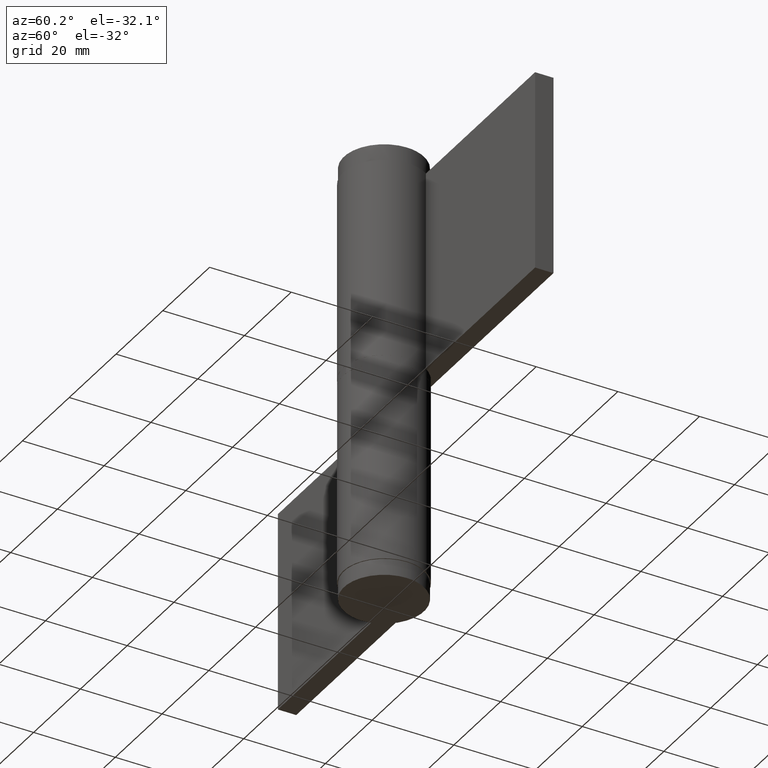
[diagram: clean part render]
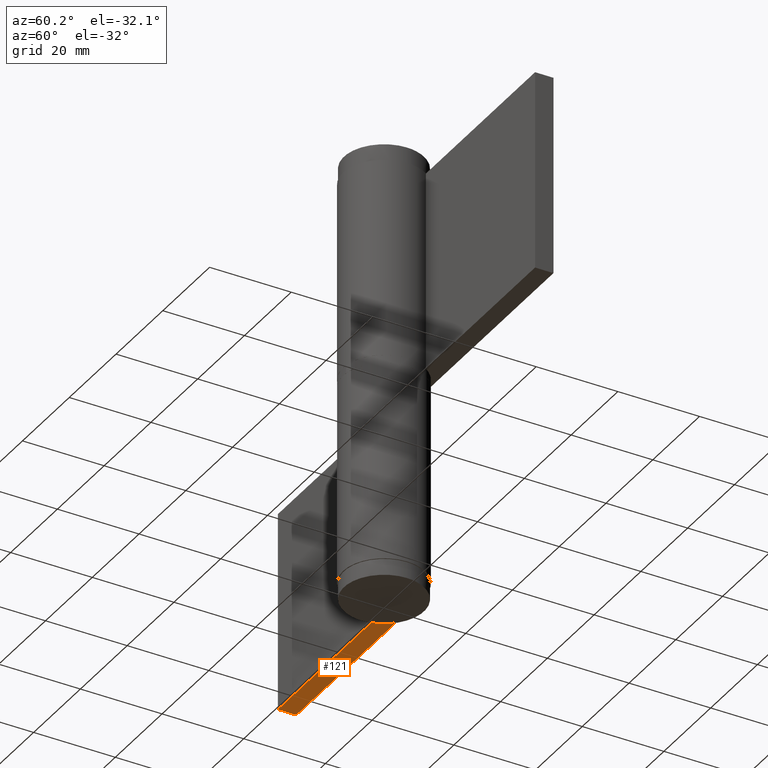
[diagram: same view with one face highlighted and labeled with its STEP entity id]
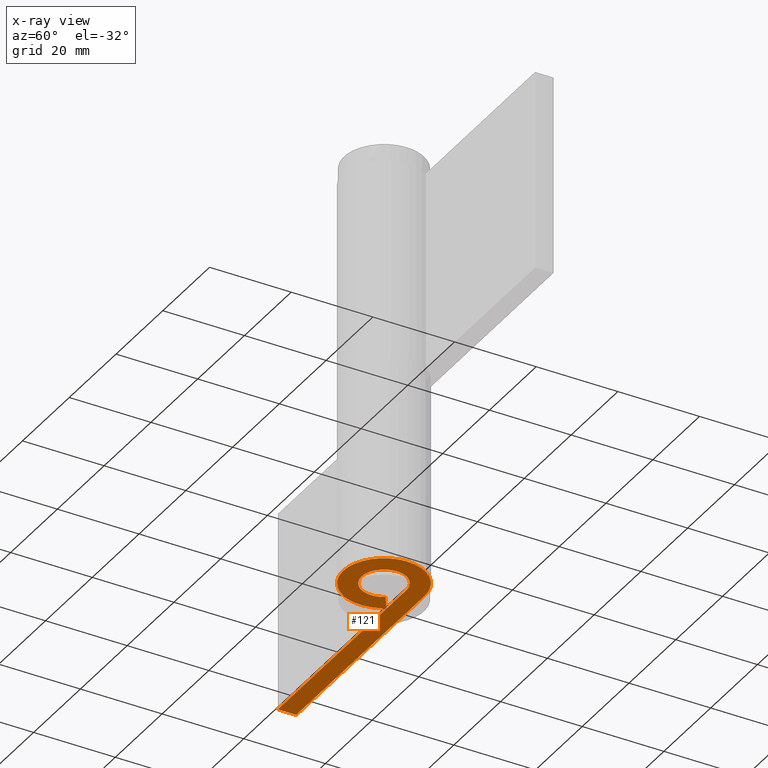
[diagram: x-ray of the same camera — body ghosted, the highlighted face saturated]
A machine part, auxiliary view. The second image highlights one B-rep face of the part: STEP entity #121.
The next image is the same camera in x-ray: the body ghosted, the highlighted face saturated — about 0% of this face is hidden behind the body in this view.
In plain terms, the highlighted face is a freeform B-spline surface patch.
Its self-contained STEP definition (entity closure, byte-faithful):
#44=CARTESIAN_POINT('',(-58.246687244102581,-10.993734196401560,0.0));
#45=CARTESIAN_POINT('',(13.245435135307890,-10.993734196401560,0.0));
#46=CARTESIAN_POINT('',(-58.246687244102581,10.998749985667811,0.0));
#47=CARTESIAN_POINT('',(13.245435135307890,10.998749985667811,0.0));
#48=B_SPLINE_SURFACE_WITH_KNOTS('',1,1,((#44,#46),(#45,#47)),.UNSPECIFIED.,.F.,.F.,.U.,(2,2),(2,2),(0.0,71.492122379410475),(0.0,21.992484182069379),.UNSPECIFIED.);
#49=CARTESIAN_POINT('',(-55.0,5.500000000000000,0.0));
#50=VERTEX_POINT('',#49);
#51=CARTESIAN_POINT('',(-55.0,10.0,0.0));
#52=VERTEX_POINT('',#51);
#53=CARTESIAN_POINT('',(-55.0,5.500000000000000,0.0));
#54=CARTESIAN_POINT('',(-55.0,10.0,0.0));
#55=QUASI_UNIFORM_CURVE('',1,(#53,#54),.UNSPECIFIED.,.F.,.U.);
#56=EDGE_CURVE('',#50,#52,#55,.T.);
#57=ORIENTED_EDGE('',*,*,#56,.T.);
#58=CARTESIAN_POINT('',(0.0,10.0,0.0));
#59=VERTEX_POINT('',#58);
#60=CARTESIAN_POINT('',(-55.0,10.0,0.0));
#61=CARTESIAN_POINT('',(0.0,10.0,0.0));
#62=QUASI_UNIFORM_CURVE('',1,(#60,#61),.UNSPECIFIED.,.F.,.U.);
#63=EDGE_CURVE('',#52,#59,#62,.T.);
#64=ORIENTED_EDGE('',*,*,#63,.T.);
#65=CARTESIAN_POINT('',(-8.384360440725340,5.450000000000000,0.0));
#66=VERTEX_POINT('',#65);
#67=CARTESIAN_POINT('',(0.0,10.0,0.0));
#68=CARTESIAN_POINT('',(7.778645974197688,10.0,0.0));
#69=CARTESIAN_POINT('',(9.692573939780772,2.460489874371089,0.0));
#70=CARTESIAN_POINT('',(11.606501905363858,-5.079020251257823,0.0));
#71=CARTESIAN_POINT('',(4.769696007084734,-8.789197915623470,0.0));
#72=CARTESIAN_POINT('',(-2.067109891194394,-12.499375579989119,0.0));
#73=CARTESIAN_POINT('',(-7.345416193928739,-6.785636369418084,0.0));
#74=CARTESIAN_POINT('',(-12.623722496663074,-1.071897158847060,0.0));
#75=CARTESIAN_POINT('',(-8.384360440725345,5.449999999999990,0.0));
#83=(BOUNDED_CURVE()B_SPLINE_CURVE(2,(#67,#68,#69,#70,#71,#72,#73,#74,#75),.UNSPECIFIED.,.F.,.U.)B_SPLINE_CURVE_WITH_KNOTS((3,2,2,2,3),(0.0,0.250000000000000,0.500000000000000,0.750000000000000,1.0),.UNSPECIFIED.)CURVE()GEOMETRIC_REPRESENTATION_ITEM()RATIONAL_B_SPLINE_CURVE((1.0,0.789319006307687,1.0,0.789319006307687,1.0,0.789319006307687,1.0,0.789319006307687,1.0))REPRESENTATION_ITEM(''));
#84=EDGE_CURVE('',#59,#66,#83,.T.);
#85=ORIENTED_EDGE('',*,*,#84,.T.);
#86=CARTESIAN_POINT('',(-4.611398242398940,2.997500000000000,0.0));
#87=VERTEX_POINT('',#86);
#88=CARTESIAN_POINT('',(-8.384360440725340,5.450000000000000,0.0));
#89=CARTESIAN_POINT('',(-4.611398242398940,2.997500000000000,0.0));
#90=QUASI_UNIFORM_CURVE('',1,(#88,#89),.UNSPECIFIED.,.F.,.U.);
#91=EDGE_CURVE('',#66,#87,#90,.T.);
#92=ORIENTED_EDGE('',*,*,#91,.T.);
#93=CARTESIAN_POINT('',(3.367667E-016,5.500000000000000,0.0));
#94=VERTEX_POINT('',#93);
#95=CARTESIAN_POINT('',(0.0,5.500000000000000,0.0));
#96=CARTESIAN_POINT('',(4.278255285808728,5.500000000000001,0.0));
#97=CARTESIAN_POINT('',(5.330915666879424,1.353269430904099,0.0));
#98=CARTESIAN_POINT('',(6.383576047950122,-2.793461138191804,0.0));
#99=CARTESIAN_POINT('',(2.623332803896604,-4.834058853592909,0.0));
#100=CARTESIAN_POINT('',(-1.136910440156916,-6.874656568994016,0.0));
#101=CARTESIAN_POINT('',(-4.039978906660806,-3.732100003179946,0.0));
#102=CARTESIAN_POINT('',(-6.943047373164690,-0.589543437365883,0.0));
#103=CARTESIAN_POINT('',(-4.611398242398940,2.997499999999995,0.0));
#111=(BOUNDED_CURVE()B_SPLINE_CURVE(2,(#95,#96,#97,#98,#99,#100,#101,#102,#103),.UNSPECIFIED.,.F.,.U.)B_SPLINE_CURVE_WITH_KNOTS((3,2,2,2,3),(0.0,0.250000000000000,0.500000000000000,0.750000000000000,1.0),.UNSPECIFIED.)CURVE()GEOMETRIC_REPRESENTATION_ITEM()RATIONAL_B_SPLINE_CURVE((1.0,0.789319006307687,1.0,0.789319006307687,1.0,0.789319006307687,1.0,0.789319006307687,1.0))REPRESENTATION_ITEM(''));
#112=EDGE_CURVE('',#94,#87,#111,.T.);
#113=ORIENTED_EDGE('',*,*,#112,.F.);
#114=CARTESIAN_POINT('',(3.367667E-016,5.500000000000000,0.0));
#115=CARTESIAN_POINT('',(-55.0,5.500000000000000,0.0));
#116=QUASI_UNIFORM_CURVE('',1,(#114,#115),.UNSPECIFIED.,.F.,.U.);
#117=EDGE_CURVE('',#94,#50,#116,.T.);
#118=ORIENTED_EDGE('',*,*,#117,.T.);
#119=EDGE_LOOP('',(#57,#64,#85,#92,#113,#118));
#120=FACE_OUTER_BOUND('',#119,.T.);
#121=ADVANCED_FACE('',(#120),#48,.F.);